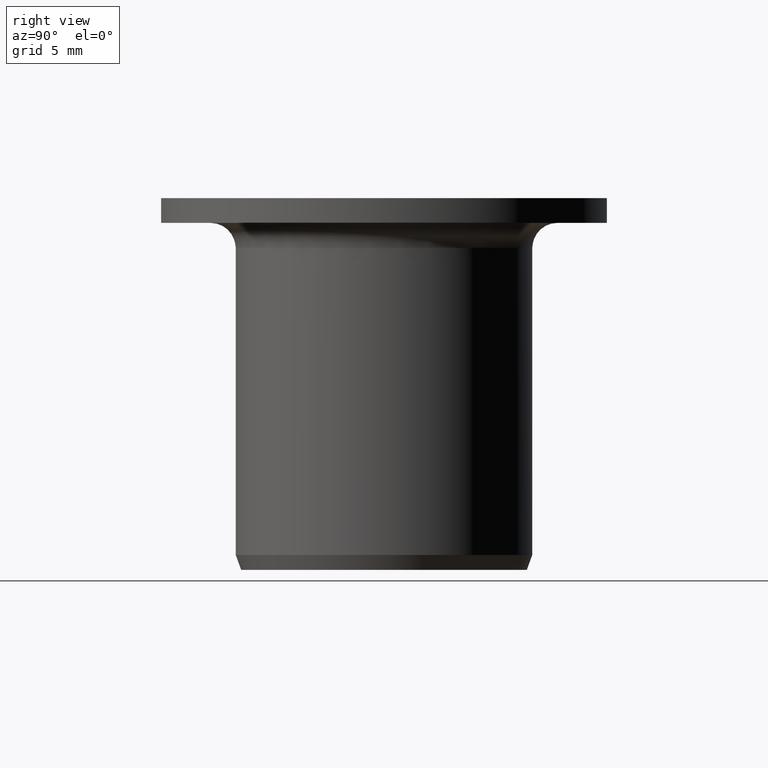
[diagram: clean part render]
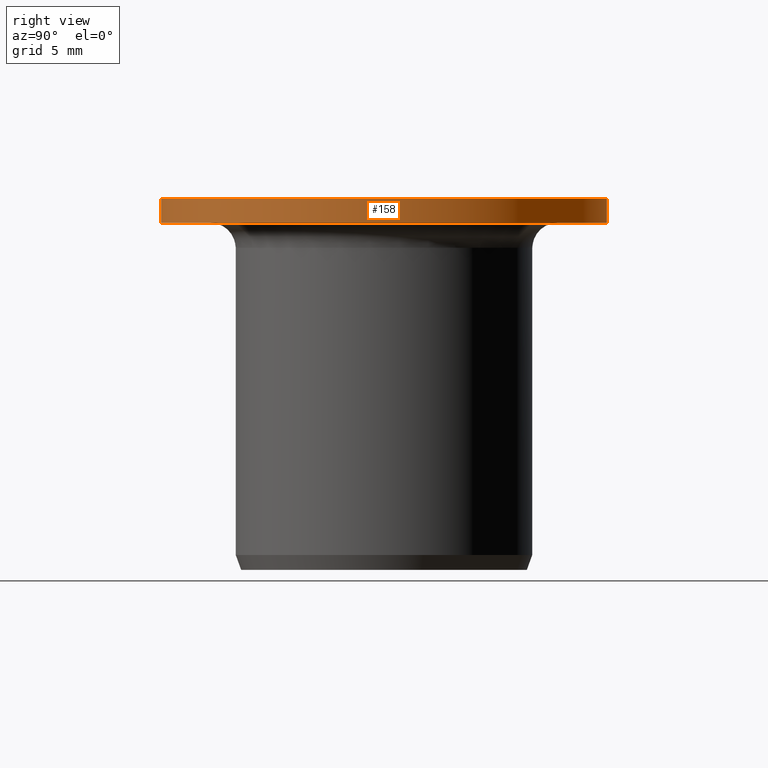
[diagram: same view with one face highlighted and labeled with its STEP entity id]
A machine part, right view. The second image highlights one B-rep face of the part: STEP entity #158.
In plain terms, the highlighted cylindrical surface (partial cylindrical patch) has radius 9 mm, axis along (-0, 0, -1).
Its self-contained STEP definition (entity closure, byte-faithful):
#158=ADVANCED_FACE('',(#177),#178,.T.);
#177=FACE_OUTER_BOUND('',#202,.T.);
#178=CYLINDRICAL_SURFACE('',#203,0.009);
#202=EDGE_LOOP('',(#257,#258,#259,#260));
#203=AXIS2_PLACEMENT_3D('',#261,#262,#263);
#257=ORIENTED_EDGE('',*,*,#333,.T.);
#258=ORIENTED_EDGE('',*,*,#334,.T.);
#259=ORIENTED_EDGE('',*,*,#331,.F.);
#260=ORIENTED_EDGE('',*,*,#314,.F.);
#261=CARTESIAN_POINT('',(0.0,0.0,0.0));
#262=DIRECTION('',(0.0,-6.12323399573677E-017,-1.0));
#263=DIRECTION('',(0.0,1.0,-6.12323399573677E-017));
#314=EDGE_CURVE('',#345,#347,#348,.T.);
#331=EDGE_CURVE('',#347,#377,#378,.T.);
#333=EDGE_CURVE('',#345,#380,#381,.T.);
#334=EDGE_CURVE('',#380,#377,#382,.T.);
#345=VERTEX_POINT('',#408);
#347=VERTEX_POINT('',#411);
#348=LINE('',#412,#413);
#377=VERTEX_POINT('',#486);
#378=CIRCLE('',#487,0.009);
#380=VERTEX_POINT('',#490);
#381=CIRCLE('',#491,0.009);
#382=LINE('',#492,#493);
#408=CARTESIAN_POINT('',(0.00895744903480042,-0.00087413202032245,0.015));
#411=CARTESIAN_POINT('',(0.00895744903480042,-0.00087413202032245,0.014));
#412=CARTESIAN_POINT('',(0.00895744903480042,-0.000874132020322451,1.5082117650264E-020));
#413=VECTOR('',#511,1.0);
#486=CARTESIAN_POINT('',(0.00895744903480042,0.000874132020322454,0.014));
#487=AXIS2_PLACEMENT_3D('',#534,#535,#536);
#490=CARTESIAN_POINT('',(0.00895744903480042,0.000874132020322453,0.015));
#491=AXIS2_PLACEMENT_3D('',#538,#539,#540);
#492=CARTESIAN_POINT('',(0.00895744903480042,0.000874132020322452,-1.76470831801696E-020));
#493=VECTOR('',#541,1.0);
#511=DIRECTION('',(0.0,-6.12323399573677E-017,-1.0));
#534=CARTESIAN_POINT('',(0.0,0.0,0.014));
#535=DIRECTION('',(0.0,-6.12323399573677E-017,-1.0));
#536=DIRECTION('',(0.0,1.0,-6.12323399573677E-017));
#538=CARTESIAN_POINT('',(0.0,0.0,0.015));
#539=DIRECTION('',(0.0,-6.12323399573677E-017,-1.0));
#540=DIRECTION('',(0.0,1.0,-6.12323399573677E-017));
#541=DIRECTION('',(0.0,-6.12323399573677E-017,-1.0));